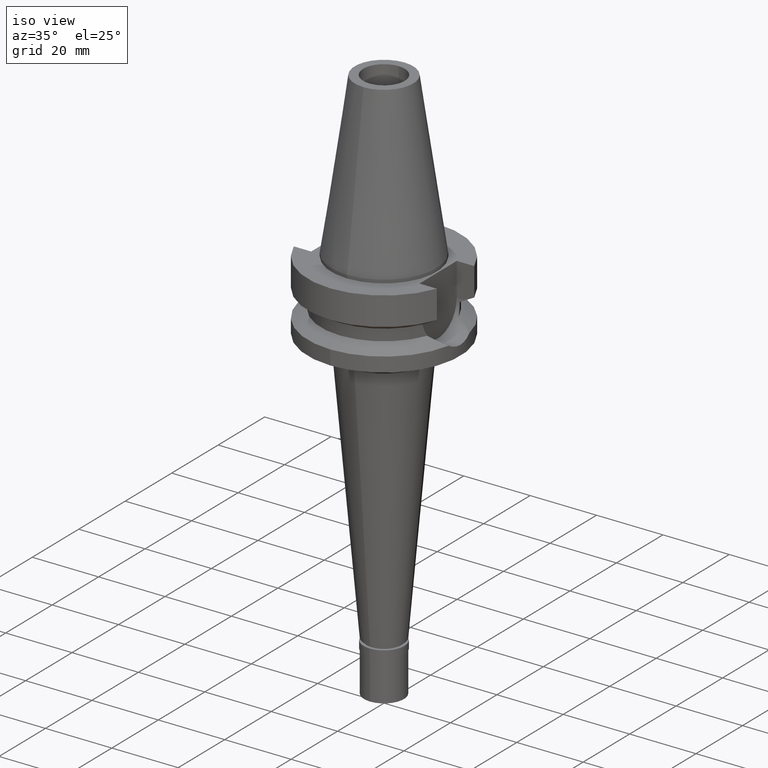
[diagram: clean part render]
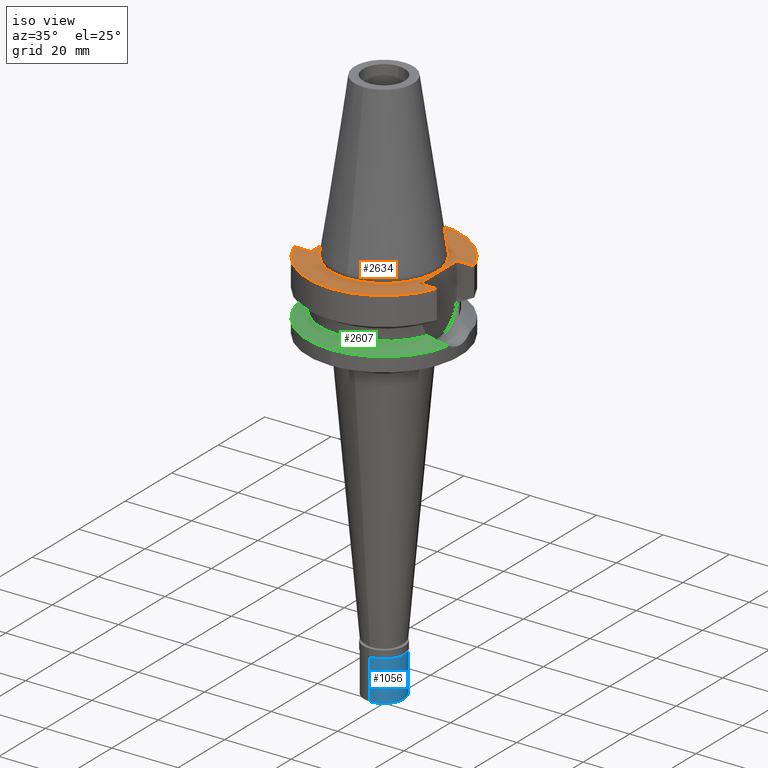
[diagram: same view with three faces highlighted in distinct colors, each labeled with its STEP entity id]
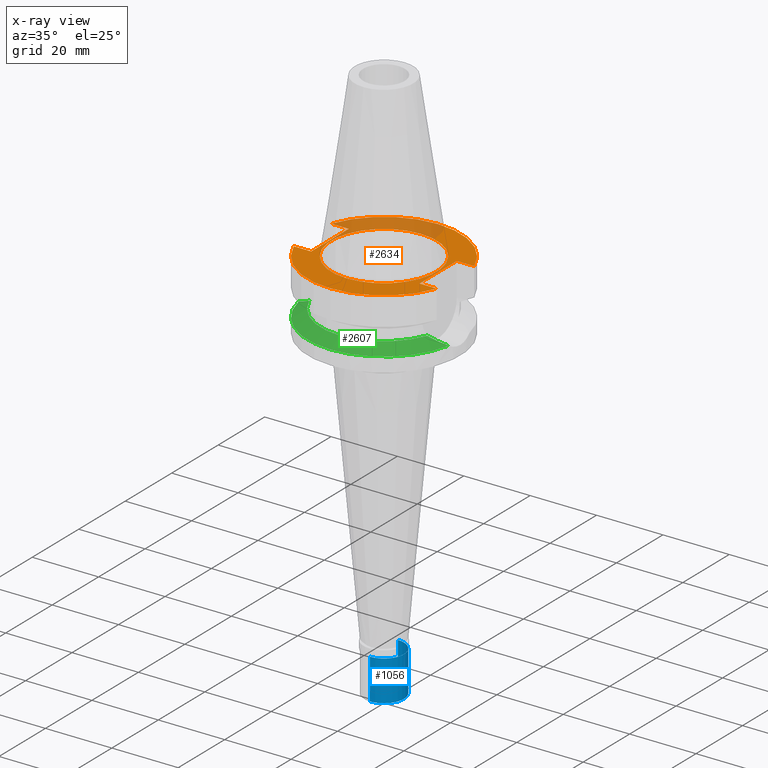
[diagram: x-ray of the same camera — body ghosted, the three highlighted faces saturated]
A machine part, iso view with three faces highlighted in distinct colors.
The next image is the same camera in x-ray (body ghosted, the three faces saturated) — at least one of them is partly hidden behind the body in this view.
Their STEP definitions:

[orange] entity #2634 — the highlighted planar face has unit normal (0, 0, -1).
#17 = CARTESIAN_POINT ( 'NONE',  ( 21.54524309446999908, 8.050000000000000711, -0.9999999999999000799 ) ) ;
#70 = ORIENTED_EDGE ( 'NONE', *, *, #2432, .T. ) ;
#118 = CARTESIAN_POINT ( 'NONE',  ( 21.54524309446999908, -8.050000000000000711, -1.000000000000000000 ) ) ;
#122 = CIRCLE ( 'NONE', #735, 23.00000000000000000 ) ;
#194 = VERTEX_POINT ( 'NONE', #760 ) ;
#197 = LINE ( 'NONE', #1606, #2779 ) ;
#208 = EDGE_CURVE ( 'NONE', #1079, #2032, #2691, .T. ) ;
#247 = DIRECTION ( 'NONE',  ( 0.0000000000000000000, 1.000000000000000000, 0.0000000000000000000 ) ) ;
#332 = LINE ( 'NONE', #1934, #1566 ) ;
#464 = CARTESIAN_POINT ( 'NONE',  ( 0.0000000000000000000, 1.918041816824999936E-14, -0.9999999999999000799 ) ) ;
#590 = DIRECTION ( 'NONE',  ( 0.0000000000000000000, -1.000000000000000000, 0.0000000000000000000 ) ) ;
#666 = CIRCLE ( 'NONE', #1051, 15.87500000000000000 ) ;
#701 = DIRECTION ( 'NONE',  ( 0.0000000000000000000, 0.0000000000000000000, -1.000000000000000000 ) ) ;
#717 = DIRECTION ( 'NONE',  ( 0.0000000000000000000, 0.0000000000000000000, -1.000000000000000000 ) ) ;
#735 = AXIS2_PLACEMENT_3D ( 'NONE', #2888, #2005, #590 ) ;
#752 = CARTESIAN_POINT ( 'NONE',  ( 16.29999999999999716, 8.050000000000000711, -1.000000000000000000 ) ) ;
#760 = CARTESIAN_POINT ( 'NONE',  ( 0.0000000000000000000, -15.87500000000000000, -0.9999999999999000799 ) ) ;
#781 = LINE ( 'NONE', #752, #1658 ) ;
#846 = VERTEX_POINT ( 'NONE', #2687 ) ;
#867 = LINE ( 'NONE', #1513, #2560 ) ;
#885 = EDGE_CURVE ( 'NONE', #2096, #1079, #197, .T. ) ;
#900 = CARTESIAN_POINT ( 'NONE',  ( 0.0000000000000000000, 1.212400331155999925E-14, -1.000000000000000000 ) ) ;
#924 = ORIENTED_EDGE ( 'NONE', *, *, #1706, .F. ) ;
#935 = CARTESIAN_POINT ( 'NONE',  ( -21.54524309446999908, 8.050000000000000711, -1.000000000000000000 ) ) ;
#974 = CIRCLE ( 'NONE', #1363, 23.00000000000000000 ) ;
#1051 = AXIS2_PLACEMENT_3D ( 'NONE', #1647, #1193, #2577 ) ;
#1071 = ORIENTED_EDGE ( 'NONE', *, *, #1318, .F. ) ;
#1079 = VERTEX_POINT ( 'NONE', #2317 ) ;
#1115 = ORIENTED_EDGE ( 'NONE', *, *, #885, .F. ) ;
#1136 = PLANE ( 'NONE',  #1870 ) ;
#1140 = EDGE_CURVE ( 'NONE', #194, #2246, #666, .T. ) ;
#1192 = ORIENTED_EDGE ( 'NONE', *, *, #1987, .F. ) ;
#1193 = DIRECTION ( 'NONE',  ( 0.0000000000000000000, 0.0000000000000000000, 1.000000000000000000 ) ) ;
#1205 = ORIENTED_EDGE ( 'NONE', *, *, #1355, .F. ) ;
#1237 = CARTESIAN_POINT ( 'NONE',  ( 16.29999999999999716, 8.050000000000000711, -1.000000000000000000 ) ) ;
#1318 = EDGE_CURVE ( 'NONE', #2934, #846, #122, .T. ) ;
#1321 = ORIENTED_EDGE ( 'NONE', *, *, #2025, .F. ) ;
#1355 = EDGE_CURVE ( 'NONE', #1660, #2934, #1509, .T. ) ;
#1363 = AXIS2_PLACEMENT_3D ( 'NONE', #464, #717, #1386 ) ;
#1386 = DIRECTION ( 'NONE',  ( 0.0000000000000000000, 1.000000000000000000, 0.0000000000000000000 ) ) ;
#1509 = LINE ( 'NONE', #1989, #2273 ) ;
#1513 = CARTESIAN_POINT ( 'NONE',  ( -16.29999999999999716, -8.050000000000000711, -1.000000000000000000 ) ) ;
#1566 = VECTOR ( 'NONE', #2176, 1000.000000000000000 ) ;
#1583 = DIRECTION ( 'NONE',  ( 0.0000000000000000000, 0.0000000000000000000, 1.000000000000000000 ) ) ;
#1604 = ORIENTED_EDGE ( 'NONE', *, *, #1681, .T. ) ;
#1606 = CARTESIAN_POINT ( 'NONE',  ( -16.29999999999999716, -8.050000000000000711, -1.000000000000000000 ) ) ;
#1622 = DIRECTION ( 'NONE',  ( 0.0000000000000000000, -1.000000000000000000, 0.0000000000000000000 ) ) ;
#1647 = CARTESIAN_POINT ( 'NONE',  ( 0.0000000000000000000, 1.918041816824999936E-14, -0.9999999999999000799 ) ) ;
#1658 = VECTOR ( 'NONE', #2827, 1000.000000000000000 ) ;
#1660 = VERTEX_POINT ( 'NONE', #2090 ) ;
#1681 = EDGE_CURVE ( 'NONE', #1815, #2582, #781, .T. ) ;
#1706 = EDGE_CURVE ( 'NONE', #1815, #1660, #332, .T. ) ;
#1736 = DIRECTION ( 'NONE',  ( -1.000000000000000000, -9.313164748262000573E-14, 0.0000000000000000000 ) ) ;
#1815 = VERTEX_POINT ( 'NONE', #1237 ) ;
#1839 = CARTESIAN_POINT ( 'NONE',  ( -16.29999999999999716, -8.050000000000000711, -1.000000000000000000 ) ) ;
#1870 = AXIS2_PLACEMENT_3D ( 'NONE', #900, #701, #1622 ) ;
#1895 = CIRCLE ( 'NONE', #2125, 15.87500000000000000 ) ;
#1934 = CARTESIAN_POINT ( 'NONE',  ( 16.29999999999999716, 8.050000000000000711, -1.000000000000000000 ) ) ;
#1975 = DIRECTION ( 'NONE',  ( 1.000000000000000000, -9.347030801892000173E-14, 0.0000000000000000000 ) ) ;
#1987 = EDGE_CURVE ( 'NONE', #2032, #2582, #974, .T. ) ;
#1989 = CARTESIAN_POINT ( 'NONE',  ( 16.29999999999999716, -8.050000000000000711, -1.000000000000000000 ) ) ;
#2005 = DIRECTION ( 'NONE',  ( 0.0000000000000000000, 0.0000000000000000000, -1.000000000000000000 ) ) ;
#2025 = EDGE_CURVE ( 'NONE', #2246, #194, #1895, .T. ) ;
#2032 = VERTEX_POINT ( 'NONE', #935 ) ;
#2069 = FACE_OUTER_BOUND ( 'NONE', #2919, .T. ) ;
#2090 = CARTESIAN_POINT ( 'NONE',  ( 16.29999999999999716, -8.050000000000000711, -1.000000000000000000 ) ) ;
#2096 = VERTEX_POINT ( 'NONE', #1839 ) ;
#2117 = ORIENTED_EDGE ( 'NONE', *, *, #208, .F. ) ;
#2125 = AXIS2_PLACEMENT_3D ( 'NONE', #2536, #1583, #247 ) ;
#2176 = DIRECTION ( 'NONE',  ( 0.0000000000000000000, -1.000000000000000000, 0.0000000000000000000 ) ) ;
#2246 = VERTEX_POINT ( 'NONE', #2594 ) ;
#2273 = VECTOR ( 'NONE', #1975, 1000.000000000000000 ) ;
#2317 = CARTESIAN_POINT ( 'NONE',  ( -16.29999999999999716, 8.050000000000000711, -1.000000000000000000 ) ) ;
#2432 = EDGE_CURVE ( 'NONE', #2096, #846, #867, .T. ) ;
#2498 = DIRECTION ( 'NONE',  ( -1.000000000000000000, 9.347030801892000173E-14, 0.0000000000000000000 ) ) ;
#2536 = CARTESIAN_POINT ( 'NONE',  ( 0.0000000000000000000, 1.918041816824999936E-14, -0.9999999999999000799 ) ) ;
#2547 = EDGE_LOOP ( 'NONE', ( #1321, #2720 ) ) ;
#2560 = VECTOR ( 'NONE', #1736, 1000.000000000000000 ) ;
#2577 = DIRECTION ( 'NONE',  ( 0.0000000000000000000, -1.000000000000000000, 0.0000000000000000000 ) ) ;
#2582 = VERTEX_POINT ( 'NONE', #17 ) ;
#2594 = CARTESIAN_POINT ( 'NONE',  ( 0.0000000000000000000, 15.87500000000000000, -0.9999999999999000799 ) ) ;
#2634 = ADVANCED_FACE ( 'NONE', ( #2069, #2958 ), #1136, .F. ) ;
#2687 = CARTESIAN_POINT ( 'NONE',  ( -21.54524309446999908, -8.050000000000000711, -1.000000000000000000 ) ) ;
#2691 = LINE ( 'NONE', #2723, #2864 ) ;
#2695 = DIRECTION ( 'NONE',  ( 0.0000000000000000000, 1.000000000000000000, 0.0000000000000000000 ) ) ;
#2720 = ORIENTED_EDGE ( 'NONE', *, *, #1140, .F. ) ;
#2723 = CARTESIAN_POINT ( 'NONE',  ( -16.29999999999999716, 8.050000000000000711, -1.000000000000000000 ) ) ;
#2779 = VECTOR ( 'NONE', #2695, 1000.000000000000000 ) ;
#2827 = DIRECTION ( 'NONE',  ( 1.000000000000000000, 9.380896855521999773E-14, 0.0000000000000000000 ) ) ;
#2864 = VECTOR ( 'NONE', #2498, 1000.000000000000000 ) ;
#2888 = CARTESIAN_POINT ( 'NONE',  ( 0.0000000000000000000, 1.918041816824999936E-14, -0.9999999999999000799 ) ) ;
#2919 = EDGE_LOOP ( 'NONE', ( #70, #1071, #1205, #924, #1604, #1192, #2117, #1115 ) ) ;
#2934 = VERTEX_POINT ( 'NONE', #118 ) ;
#2958 = FACE_BOUND ( 'NONE', #2547, .T. ) ;

[blue] entity #1056 — the highlighted cylindrical surface (edge-blend (fillet) strip) has radius 6 mm, axis along (0, 0, 1).
#185 = CARTESIAN_POINT ( 'NONE',  ( 0.0000000000000000000, 0.0000000000000000000, -2.299999999999999822 ) ) ;
#186 = CIRCLE ( 'NONE', #557, 6.000000000000000000 ) ;
#254 = VERTEX_POINT ( 'NONE', #2286 ) ;
#281 = ORIENTED_EDGE ( 'NONE', *, *, #2480, .T. ) ;
#327 = LINE ( 'NONE', #1478, #331 ) ;
#331 = VECTOR ( 'NONE', #2788, 1000.000000000000000 ) ;
#352 = VECTOR ( 'NONE', #2700, 1000.000000000000000 ) ;
#398 = EDGE_CURVE ( 'NONE', #1664, #2933, #186, .T. ) ;
#449 = CIRCLE ( 'NONE', #1076, 6.000000000000000000 ) ;
#474 = AXIS2_PLACEMENT_3D ( 'NONE', #899, #1365, #2488 ) ;
#557 = AXIS2_PLACEMENT_3D ( 'NONE', #1396, #2333, #969 ) ;
#604 = CARTESIAN_POINT ( 'NONE',  ( 0.0000000000000000000, 6.000000000000000000, -14.50000000000000000 ) ) ;
#866 = FACE_OUTER_BOUND ( 'NONE', #2139, .T. ) ;
#892 = VERTEX_POINT ( 'NONE', #2757 ) ;
#899 = CARTESIAN_POINT ( 'NONE',  ( 0.0000000000000000000, 0.0000000000000000000, -15.22500000000000142 ) ) ;
#969 = DIRECTION ( 'NONE',  ( 0.0000000000000000000, -1.000000000000000000, 0.0000000000000000000 ) ) ;
#1056 = ADVANCED_FACE ( 'NONE', ( #866 ), #2929, .T. ) ;
#1067 = LINE ( 'NONE', #2882, #352 ) ;
#1076 = AXIS2_PLACEMENT_3D ( 'NONE', #185, #1792, #2023 ) ;
#1339 = ORIENTED_EDGE ( 'NONE', *, *, #398, .T. ) ;
#1365 = DIRECTION ( 'NONE',  ( 0.0000000000000000000, 0.0000000000000000000, 1.000000000000000000 ) ) ;
#1396 = CARTESIAN_POINT ( 'NONE',  ( 0.0000000000000000000, 0.0000000000000000000, -14.50000000000000000 ) ) ;
#1478 = CARTESIAN_POINT ( 'NONE',  ( 0.0000000000000000000, 6.000000000000000000, -2.299999999999999822 ) ) ;
#1664 = VERTEX_POINT ( 'NONE', #2840 ) ;
#1792 = DIRECTION ( 'NONE',  ( 0.0000000000000000000, 0.0000000000000000000, -1.000000000000000000 ) ) ;
#1946 = EDGE_CURVE ( 'NONE', #254, #1664, #1067, .T. ) ;
#2023 = DIRECTION ( 'NONE',  ( 0.0000000000000000000, 1.000000000000000000, 0.0000000000000000000 ) ) ;
#2139 = EDGE_LOOP ( 'NONE', ( #281, #2546, #1339, #2497 ) ) ;
#2286 = CARTESIAN_POINT ( 'NONE',  ( 0.0000000000000000000, -6.000000000000000000, -2.299999999999999822 ) ) ;
#2333 = DIRECTION ( 'NONE',  ( 0.0000000000000000000, 0.0000000000000000000, 1.000000000000000000 ) ) ;
#2480 = EDGE_CURVE ( 'NONE', #892, #254, #449, .T. ) ;
#2488 = DIRECTION ( 'NONE',  ( 0.0000000000000000000, 1.000000000000000000, 0.0000000000000000000 ) ) ;
#2497 = ORIENTED_EDGE ( 'NONE', *, *, #2671, .F. ) ;
#2546 = ORIENTED_EDGE ( 'NONE', *, *, #1946, .T. ) ;
#2671 = EDGE_CURVE ( 'NONE', #892, #2933, #327, .T. ) ;
#2700 = DIRECTION ( 'NONE',  ( 0.0000000000000000000, 0.0000000000000000000, -1.000000000000000000 ) ) ;
#2757 = CARTESIAN_POINT ( 'NONE',  ( 0.0000000000000000000, 6.000000000000000000, -2.299999999999999822 ) ) ;
#2788 = DIRECTION ( 'NONE',  ( 0.0000000000000000000, 0.0000000000000000000, -1.000000000000000000 ) ) ;
#2840 = CARTESIAN_POINT ( 'NONE',  ( 0.0000000000000000000, -6.000000000000000000, -14.50000000000000000 ) ) ;
#2882 = CARTESIAN_POINT ( 'NONE',  ( 0.0000000000000000000, -6.000000000000000000, -2.299999999999999822 ) ) ;
#2929 = CYLINDRICAL_SURFACE ( 'NONE', #474, 6.000000000000000000 ) ;
#2933 = VERTEX_POINT ( 'NONE', #604 ) ;

[green] entity #2607 — the highlighted conical surface has half-angle 60 deg.
#2 = AXIS2_PLACEMENT_3D ( 'NONE', #2279, #1366, #2942 ) ;
#114 = AXIS2_PLACEMENT_3D ( 'NONE', #1811, #2945, #1124 ) ;
#161 = EDGE_CURVE ( 'NONE', #2305, #2784, #2243, .T. ) ;
#220 = CARTESIAN_POINT ( 'NONE',  ( -21.37344794598705278, -5.343258989423239846, -17.05846002344342693 ) ) ;
#272 = EDGE_CURVE ( 'NONE', #1916, #2293, #751, .T. ) ;
#344 = CARTESIAN_POINT ( 'NONE',  ( 18.24675218977915137, -6.607564103571266223, -15.55648233671239744 ) ) ;
#360 = EDGE_CURVE ( 'NONE', #2784, #2649, #1264, .T. ) ;
#381 = CARTESIAN_POINT ( 'NONE',  ( 19.36695893208560193, -6.194545911782915582, -16.09278002673805830 ) ) ;
#411 = CARTESIAN_POINT ( 'NONE',  ( 20.28687074495432441, -5.797579825973666168, -16.53487546129669639 ) ) ;
#560 = B_SPLINE_CURVE_WITH_KNOTS ( 'NONE', 3,
 ( #689, #220, #1150, #2284 ),
 .UNSPECIFIED., .F., .F.,
 ( 4, 4 ),
 ( 0.0000000000000000000, 1.000000000000000000 ),
 .UNSPECIFIED. ) ;
#625 = CARTESIAN_POINT ( 'NONE',  ( 19.88834021733579860, -5.976687382299986417, -16.34315164503856010 ) ) ;
#689 = CARTESIAN_POINT ( 'NONE',  ( -22.55786346208000026, -4.488072640470000430, -17.63279163029000074 ) ) ;
#731 = CARTESIAN_POINT ( 'NONE',  ( -22.55786346208000026, -4.488072640470000430, -17.63279163029000074 ) ) ;
#751 = CIRCLE ( 'NONE', #1530, 23.00000000000000000 ) ;
#840 = DIRECTION ( 'NONE',  ( 0.0000000000000000000, -1.000000000000000000, 0.0000000000000000000 ) ) ;
#1101 = CARTESIAN_POINT ( 'NONE',  ( 20.35793857628147663, -5.764420525647365068, -16.56909800941918931 ) ) ;
#1124 = DIRECTION ( 'NONE',  ( 0.9807766722643714852, -0.1951335930638943839, 0.0000000000000000000 ) ) ;
#1150 = CARTESIAN_POINT ( 'NONE',  ( -19.77328210348038695, -6.137069160763462428, -16.28355951933398416 ) ) ;
#1213 = CIRCLE ( 'NONE', #114, 23.00000000000001066 ) ;
#1264 = B_SPLINE_CURVE_WITH_KNOTS ( 'NONE', 3,
 ( #1722, #344, #2419, #381, #2210, #625, #1313, #1582, #411, #1332, #1101, #2024, #1446, #2365 ),
 .UNSPECIFIED., .F., .F.,
 ( 4, 2, 2, 1, 1, 2, 2, 4 ),
 ( 0.0000000000000000000, 0.2499999999999835687, 0.3749999999999753530, 0.4374999999999724110, 0.4687499999999709677, 0.4843749999999706901, 0.4999999999999704681, 1.000000000000000000 ),
 .UNSPECIFIED. ) ;
#1313 = CARTESIAN_POINT ( 'NONE',  ( 20.04039836824675547, -5.910168990040545189, -16.41625358784078514 ) ) ;
#1332 = CARTESIAN_POINT ( 'NONE',  ( 20.33554001995053184, -5.774912515624161635, -16.55831090379432524 ) ) ;
#1361 = ORIENTED_EDGE ( 'NONE', *, *, #2104, .F. ) ;
#1366 = DIRECTION ( 'NONE',  ( 0.0000000000000000000, 0.0000000000000000000, -1.000000000000000000 ) ) ;
#1446 = CARTESIAN_POINT ( 'NONE',  ( 21.93954148227321355, -4.934521128519656408, -17.33296285281955917 ) ) ;
#1499 = CARTESIAN_POINT ( 'NONE',  ( -17.75736593456000278, -6.758398853743999624, -15.32339055352999857 ) ) ;
#1530 = AXIS2_PLACEMENT_3D ( 'NONE', #2792, #2118, #840 ) ;
#1582 = CARTESIAN_POINT ( 'NONE',  ( 20.21356431616390736, -5.831509341442859373, -16.49958248481762624 ) ) ;
#1683 = CARTESIAN_POINT ( 'NONE',  ( 22.55786346208000026, -4.488072640470000430, -17.63279163029000074 ) ) ;
#1722 = CARTESIAN_POINT ( 'NONE',  ( 17.75736593456000278, -6.758398853743999624, -15.32339055352999857 ) ) ;
#1808 = FACE_OUTER_BOUND ( 'NONE', #2766, .T. ) ;
#1811 = CARTESIAN_POINT ( 'NONE',  ( 0.0000000000000000000, 1.022848384030000006E-14, -17.63279163029000074 ) ) ;
#1916 = VERTEX_POINT ( 'NONE', #2916 ) ;
#1932 = CARTESIAN_POINT ( 'NONE',  ( 0.0000000000000000000, 1.022848384030000006E-14, -15.32339055352999857 ) ) ;
#2014 = ORIENTED_EDGE ( 'NONE', *, *, #272, .F. ) ;
#2021 = EDGE_CURVE ( 'NONE', #2293, #2305, #560, .T. ) ;
#2024 = CARTESIAN_POINT ( 'NONE',  ( 21.21488925446342222, -5.360291326837379522, -16.98187925259314568 ) ) ;
#2094 = AXIS2_PLACEMENT_3D ( 'NONE', #1932, #2838, #2342 ) ;
#2104 = EDGE_CURVE ( 'NONE', #2649, #1916, #1213, .T. ) ;
#2118 = DIRECTION ( 'NONE',  ( 0.0000000000000000000, 0.0000000000000000000, -1.000000000000000000 ) ) ;
#2198 = ORIENTED_EDGE ( 'NONE', *, *, #161, .F. ) ;
#2210 = CARTESIAN_POINT ( 'NONE',  ( 19.57938365477598452, -6.108434226123264921, -16.19471526716462861 ) ) ;
#2243 = CIRCLE ( 'NONE', #2094, 19.00000000000000000 ) ;
#2279 = CARTESIAN_POINT ( 'NONE',  ( 0.0000000000000000000, 1.022848384030000006E-14, -16.47809109191000232 ) ) ;
#2284 = CARTESIAN_POINT ( 'NONE',  ( -17.75736593456000278, -6.758398853743999624, -15.32339055352999857 ) ) ;
#2293 = VERTEX_POINT ( 'NONE', #731 ) ;
#2298 = CONICAL_SURFACE ( 'NONE', #2, 21.00000000000000000, 1.047197551196400456 ) ;
#2305 = VERTEX_POINT ( 'NONE', #1499 ) ;
#2335 = CARTESIAN_POINT ( 'NONE',  ( 17.75736593456000278, -6.758398853743999624, -15.32339055352999857 ) ) ;
#2342 = DIRECTION ( 'NONE',  ( 0.0000000000000000000, -1.000000000000000000, 0.0000000000000000000 ) ) ;
#2365 = CARTESIAN_POINT ( 'NONE',  ( 22.55786346208000026, -4.488072640470000430, -17.63279163029000074 ) ) ;
#2419 = CARTESIAN_POINT ( 'NONE',  ( 18.71032372106295227, -6.447032719037515847, -15.77810635198407319 ) ) ;
#2607 = ADVANCED_FACE ( 'NONE', ( #1808 ), #2298, .T. ) ;
#2649 = VERTEX_POINT ( 'NONE', #1683 ) ;
#2694 = ORIENTED_EDGE ( 'NONE', *, *, #2021, .F. ) ;
#2735 = ORIENTED_EDGE ( 'NONE', *, *, #360, .F. ) ;
#2766 = EDGE_LOOP ( 'NONE', ( #2014, #1361, #2735, #2198, #2694 ) ) ;
#2784 = VERTEX_POINT ( 'NONE', #2335 ) ;
#2792 = CARTESIAN_POINT ( 'NONE',  ( 0.0000000000000000000, 1.022848384030000006E-14, -17.63279163029000074 ) ) ;
#2838 = DIRECTION ( 'NONE',  ( 0.0000000000000000000, 0.0000000000000000000, 1.000000000000000000 ) ) ;
#2916 = CARTESIAN_POINT ( 'NONE',  ( 0.0000000000000000000, -23.00000000000000000, -17.63279163029000074 ) ) ;
#2942 = DIRECTION ( 'NONE',  ( 0.0000000000000000000, -1.000000000000000000, 0.0000000000000000000 ) ) ;
#2945 = DIRECTION ( 'NONE',  ( 0.0000000000000000000, 0.0000000000000000000, -1.000000000000000000 ) ) ;